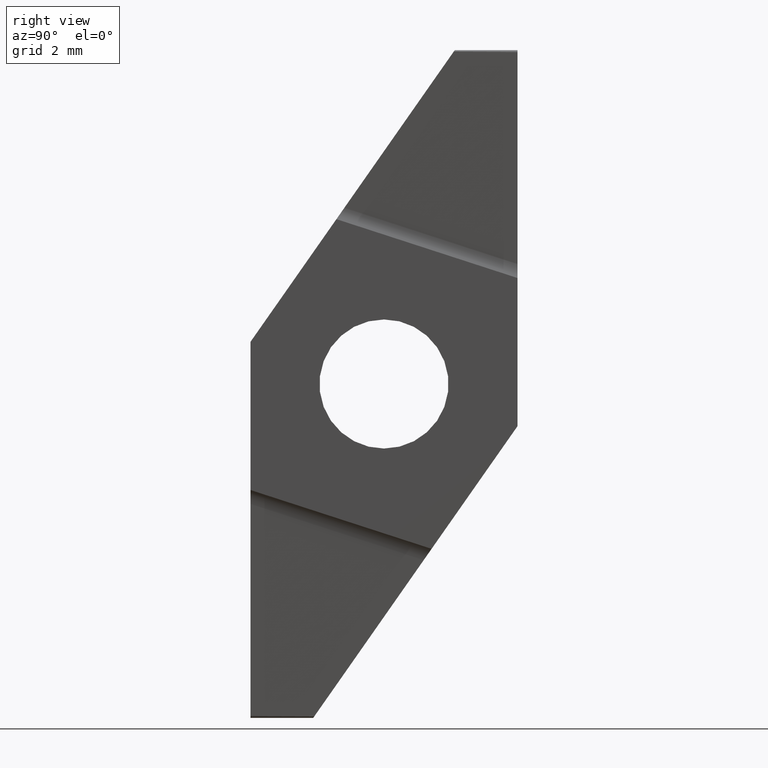
[diagram: clean part render]
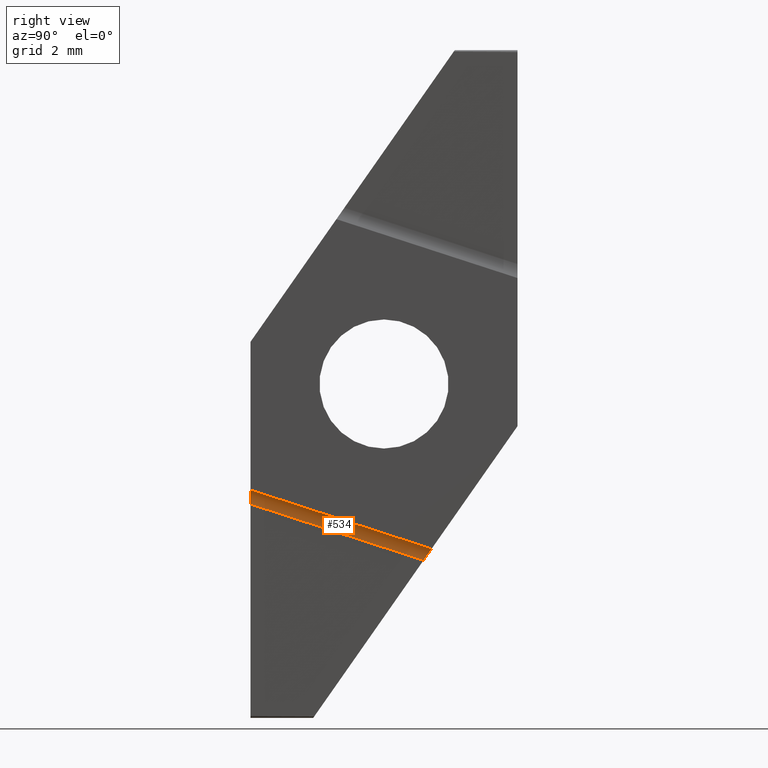
[diagram: same view with one face highlighted and labeled with its STEP entity id]
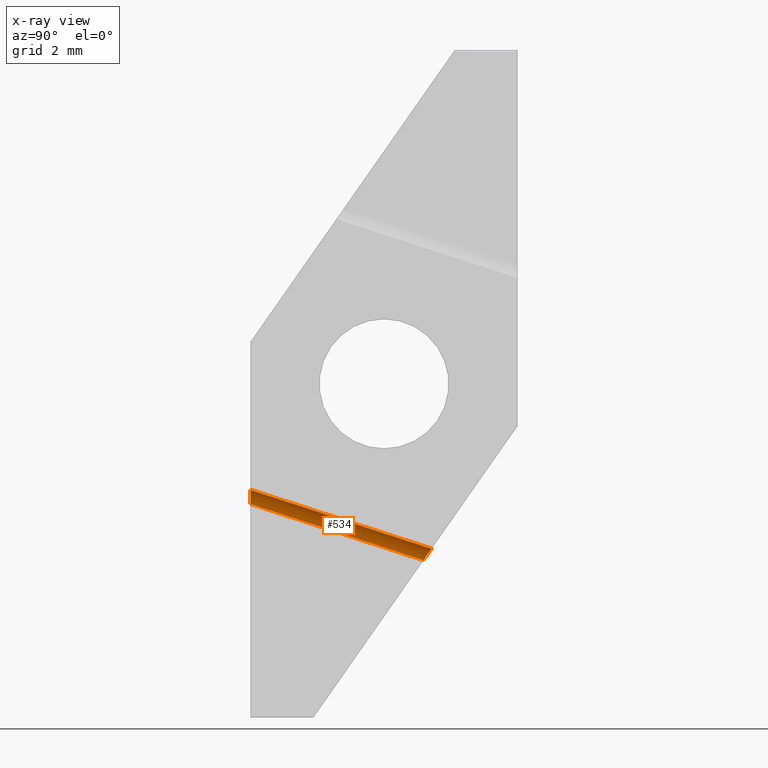
[diagram: x-ray of the same camera — body ghosted, the highlighted face saturated]
A machine part, right view. The second image highlights one B-rep face of the part: STEP entity #534.
The next image is the same camera in x-ray: the body ghosted, the highlighted face saturated — about 0% of this face is hidden behind the body in this view.
In plain terms, the highlighted cylindrical surface (edge-blend (fillet) strip) has radius 0.4 mm, axis along (0, 0.9511, -0.309).
Its self-contained STEP definition (entity closure, byte-faithful):
#36 = ORIENTED_EDGE ( 'NONE', *, *, #319, .F. ) ;
#53 = VECTOR ( 'NONE', #562, 1000.000000000000227 ) ;
#56 = CARTESIAN_POINT ( 'NONE',  ( 2.868520297534491004, -2.999999999999830802, -2.696678719166964555 ) ) ;
#74 = CARTESIAN_POINT ( 'NONE',  ( 2.868520297534491004, 0.8892426552336960555, -3.960370261281475290 ) ) ;
#105 = CARTESIAN_POINT ( 'NONE',  ( 3.268503458906062864, 2.335775009216123799, -4.426518001695876947 ) ) ;
#143 =( BOUNDED_CURVE ( )  B_SPLINE_CURVE ( 3, ( #56, #304, #730, #746 ),
 .UNSPECIFIED., .F., .F. ) 
 B_SPLINE_CURVE_WITH_KNOTS ( ( 4, 4 ),
 ( 1.561620612498219485, 2.405687101123587190 ),
 .UNSPECIFIED. ) 
 CURVE ( )  GEOMETRIC_REPRESENTATION_ITEM ( )  RATIONAL_B_SPLINE_CURVE ( ( 1.000000000000000000, 0.9415053179130717931, 0.9415053179130717931, 1.000000000000000000 ) ) 
 REPRESENTATION_ITEM ( '' )  );
#179 = CARTESIAN_POINT ( 'NONE',  ( 3.000000000000000000, 1.069273574088523526, -3.703259463367000848 ) ) ;
#214 = FACE_OUTER_BOUND ( 'NONE', #601, .T. ) ;
#229 = ORIENTED_EDGE ( 'NONE', *, *, #524, .F. ) ;
#245 = ORIENTED_EDGE ( 'NONE', *, *, #624, .T. ) ;
#246 = CARTESIAN_POINT ( 'NONE',  ( 2.868520297534491004, 0.8892426552336960555, -3.960370261281475290 ) ) ;
#249 = VERTEX_POINT ( 'NONE', #74 ) ;
#258 = DIRECTION ( 'NONE',  ( -0.000000000000000000, -0.9510565162951555296, 0.3090169943749410675 ) ) ;
#264 = LINE ( 'NONE', #451, #666 ) ;
#304 = CARTESIAN_POINT ( 'NONE',  ( 2.867455770228641843, -2.999999999999831246, -2.574695972163809188 ) ) ;
#310 =( BOUNDED_CURVE ( )  B_SPLINE_CURVE ( 3, ( #179, #670, #466, #246 ),
 .UNSPECIFIED., .F., .F. ) 
 B_SPLINE_CURVE_WITH_KNOTS ( ( 4, 4 ),
 ( 0.7359055524662067027, 1.579972041091574297 ),
 .UNSPECIFIED. ) 
 CURVE ( )  GEOMETRIC_REPRESENTATION_ITEM ( )  RATIONAL_B_SPLINE_CURVE ( ( 1.000000000000000000, 0.9415053179130719041, 0.9415053179130719041, 1.000000000000000000 ) ) 
 REPRESENTATION_ITEM ( '' )  );
#319 = EDGE_CURVE ( 'NONE', #500, #249, #310, .T. ) ;
#380 = CARTESIAN_POINT ( 'NONE',  ( 3.000000000000000000, 2.427050983125038197, -4.144428086663038080 ) ) ;
#394 = LINE ( 'NONE', #380, #53 ) ;
#417 = VERTEX_POINT ( 'NONE', #614 ) ;
#422 = VERTEX_POINT ( 'NONE', #433 ) ;
#433 = CARTESIAN_POINT ( 'NONE',  ( 3.000000000000000000, -2.999999999999831246, -2.381072329785649977 ) ) ;
#451 = CARTESIAN_POINT ( 'NONE',  ( 2.868520297534491004, -28.25557969565815952, 5.509356563732108469 ) ) ;
#466 = CARTESIAN_POINT ( 'NONE',  ( 2.867455770228641843, 0.9588251059263569465, -3.860996223020519480 ) ) ;
#500 = VERTEX_POINT ( 'NONE', #672 ) ;
#524 = EDGE_CURVE ( 'NONE', #417, #422, #143, .T. ) ;
#534 = ADVANCED_FACE ( 'NONE', ( #214 ), #574, .F. ) ;
#562 = DIRECTION ( 'NONE',  ( 0.000000000000000000, -0.9510565162951556406, 0.3090169943749410120 ) ) ;
#574 = CYLINDRICAL_SURFACE ( 'NONE', #763, 0.4000000000000001332 ) ;
#601 = EDGE_LOOP ( 'NONE', ( #36, #245, #229, #781 ) ) ;
#614 = CARTESIAN_POINT ( 'NONE',  ( 2.868520297534491004, -2.999999999999830802, -2.696678719166964555 ) ) ;
#624 = EDGE_CURVE ( 'NONE', #500, #422, #394, .T. ) ;
#646 = DIRECTION ( 'NONE',  ( 0.000000000000000000, 0.9510565162951557516, -0.3090169943749410675 ) ) ;
#666 = VECTOR ( 'NONE', #258, 1000.000000000000114 ) ;
#670 = CARTESIAN_POINT ( 'NONE',  ( 2.914005233789451310, 1.022563786041261302, -3.769967954062046100 ) ) ;
#672 = CARTESIAN_POINT ( 'NONE',  ( 3.000000000000000000, 1.069273574088523526, -3.703259463367000848 ) ) ;
#681 = EDGE_CURVE ( 'NONE', #249, #417, #264, .T. ) ;
#699 = DIRECTION ( 'NONE',  ( 0.000000000000000000, 0.3090169943749408454, 0.9510565162951556406 ) ) ;
#730 = CARTESIAN_POINT ( 'NONE',  ( 2.914005233789451310, -2.999999999999831246, -2.462957750624114261 ) ) ;
#746 = CARTESIAN_POINT ( 'NONE',  ( 3.000000000000000000, -2.999999999999831246, -2.381072329785649977 ) ) ;
#763 = AXIS2_PLACEMENT_3D ( 'NONE', #105, #646, #699 ) ;
#781 = ORIENTED_EDGE ( 'NONE', *, *, #681, .F. ) ;